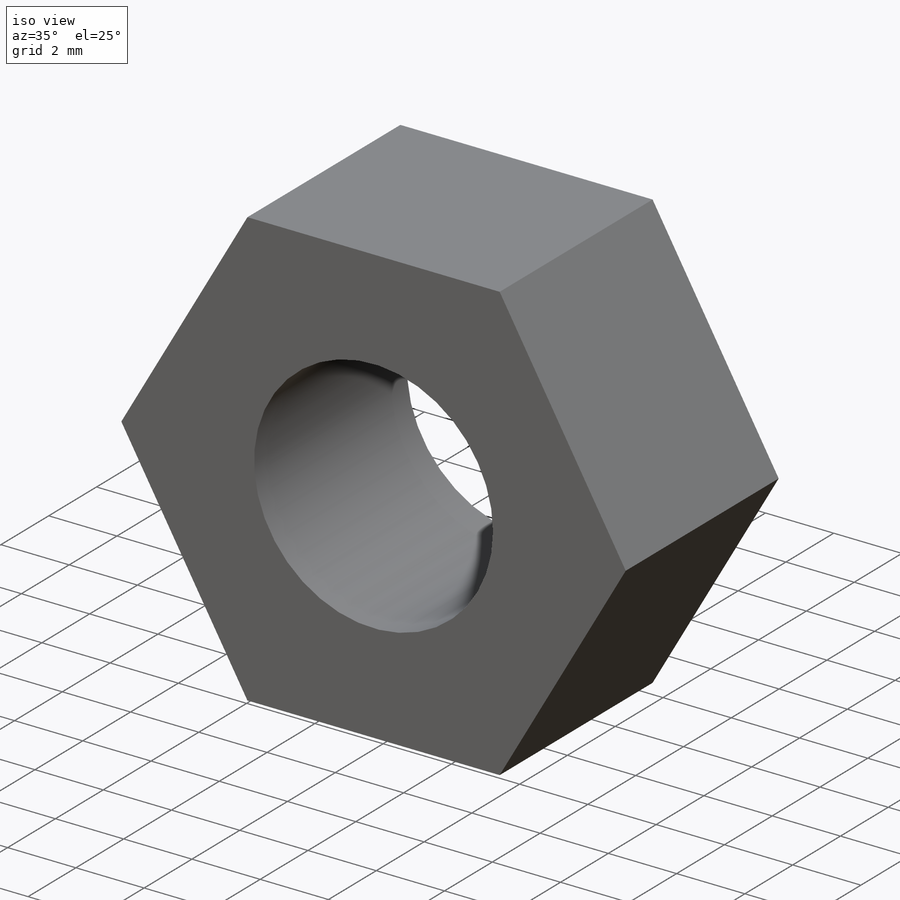
[diagram: iso view]
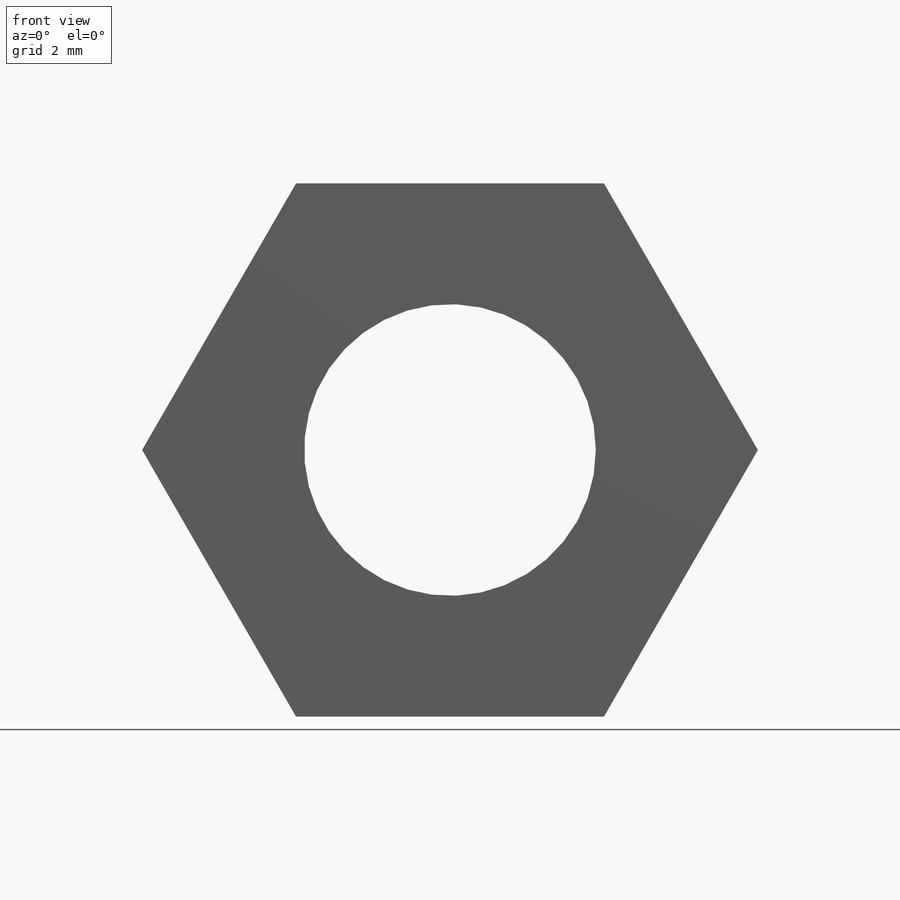
[diagram: front view]
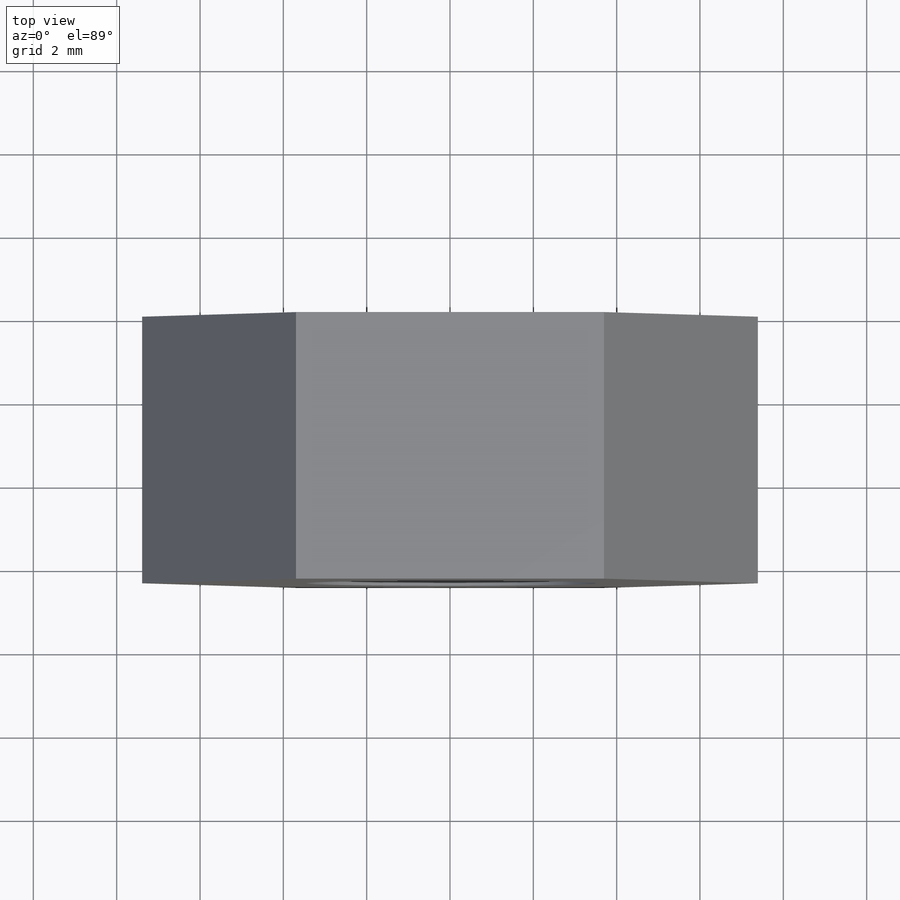
[diagram: top view]
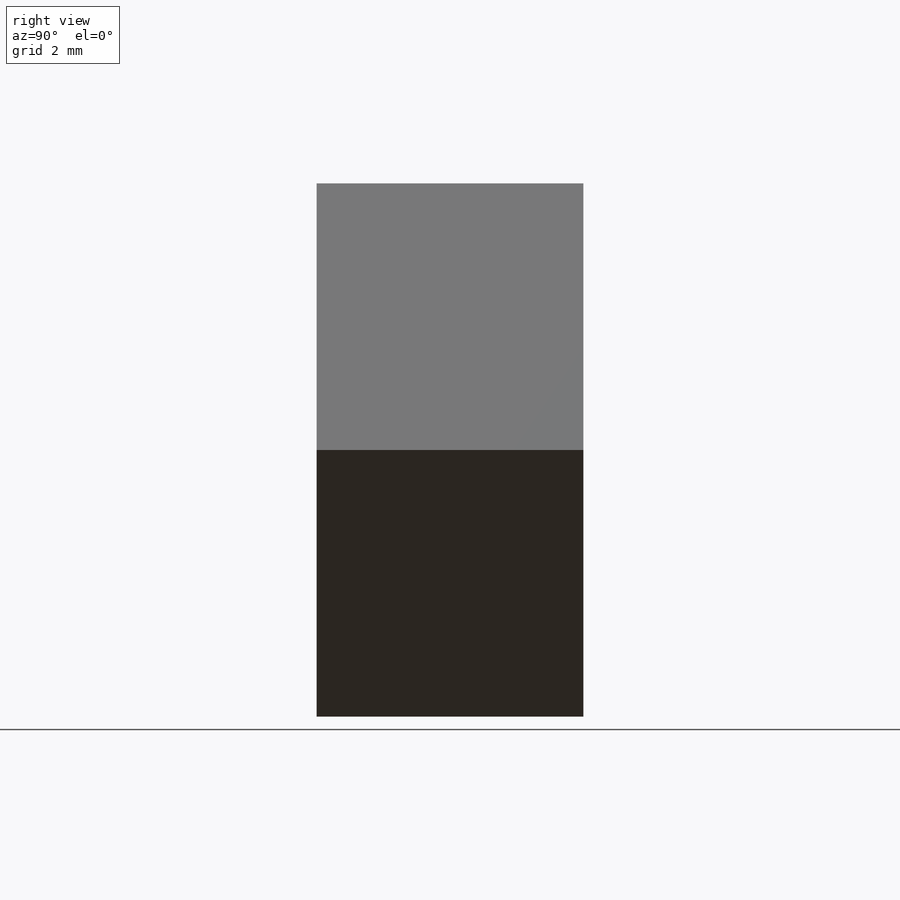
[diagram: right view]
SOLIDWORKS PART (.sldprt)
format: sldprt  version: not decoded by parser v0  size: 181,760 bytes
history: native  units: mm
features: sketch x3, material x1, extrude x1, hole x1, thread x1 (+12 scaffold rows collapsed)
feature tree (19):
  scaffold x12  (default folders/planes/origin — collapsed)
  material  "Material <not specified>"
  sketch  "Sketch1"  dims[D1=12.8mm]
  extrude  "Extrude1"  Depth=6.4mm
  hole  "M8x1.0 Tapped Hole1"  Diameter=7mm Depth=6.4mm
  sketch  "Sketch3"
  sketch  "Sketch4"  dims[hole-wizard template sketch: 59 standard entries collapsed; hole parameters kept: c18.Thru Tap Drill Dia.=7.0mm c18.Thru Tap Drill Depth=6.4mm]
  thread  "Hole Thread1"  Diameter=8mm  [1 undecoded]
decode coverage: 5 of 6 modeling features carry decoded parameters
note: ~ marks probable driven/reference dimensions
note: 1 parameter value undecoded
note: suppression state not decoded; provenance and decode notes live in map.json
